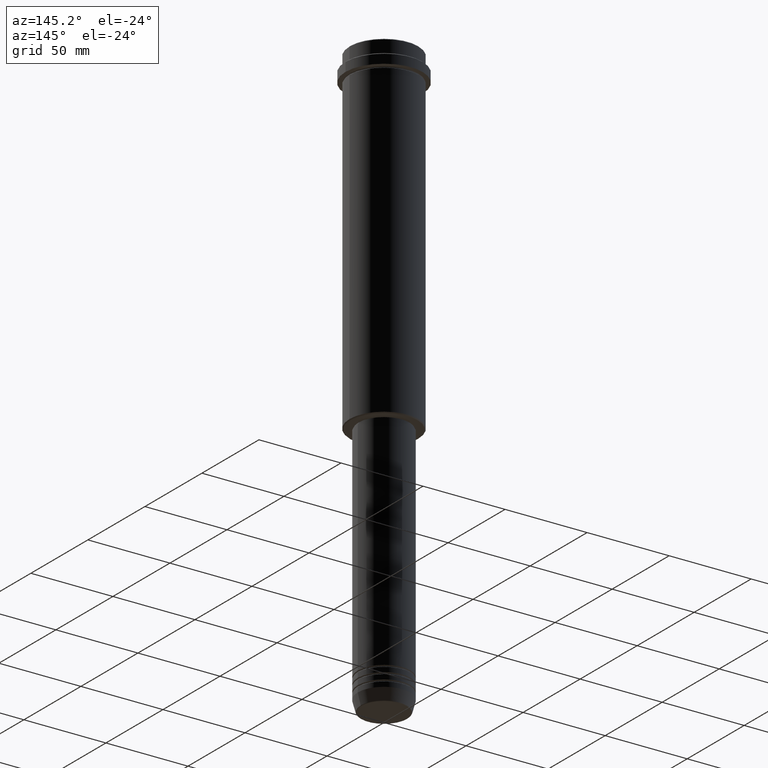
[diagram: clean part render]
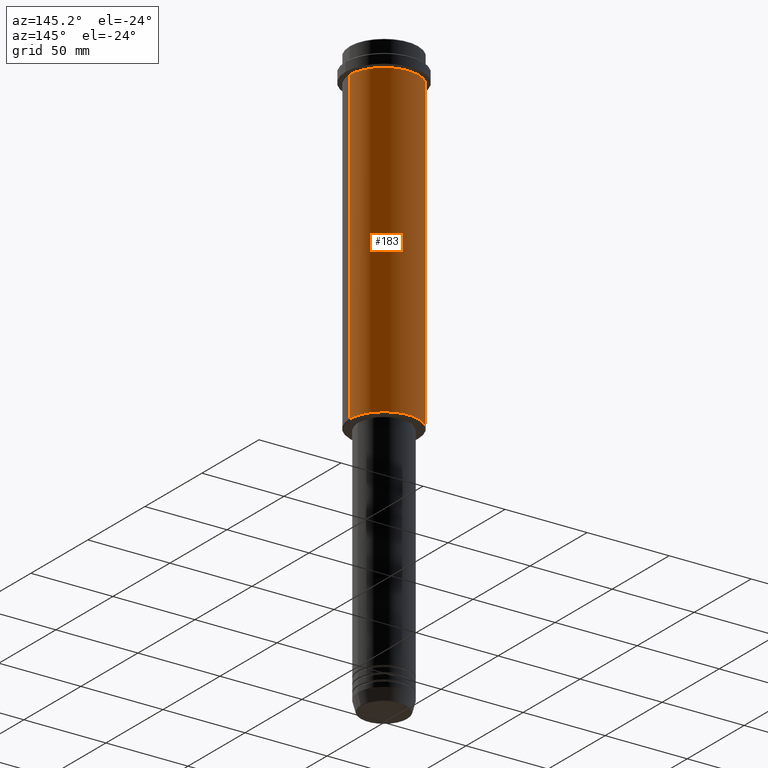
[diagram: same view with one face highlighted and labeled with its STEP entity id]
A machine part, auxiliary view. The second image highlights one B-rep face of the part: STEP entity #183.
In plain terms, the highlighted cylindrical surface (partial cylindrical patch) has radius 21 mm, axis along (-0, -0, 1).
Its self-contained STEP definition (entity closure, byte-faithful):
#32 = DIRECTION ( 'NONE',  ( -0.000000000000000000, -0.000000000000000000, 1.000000000000000000 ) ) ;
#41 = DIRECTION ( 'NONE',  ( 1.000000000000000000, 0.000000000000000000, 0.000000000000000000 ) ) ;
#114 = CARTESIAN_POINT ( 'NONE',  ( -20.99999999999999645, 2.571758278209441267E-15, -204.5000000000000853 ) ) ;
#123 = EDGE_CURVE ( 'NONE', #1327, #867, #726, .T. ) ;
#132 = CARTESIAN_POINT ( 'NONE',  ( 20.99999999999999645, 0.000000000000000000, -16.00000000000000355 ) ) ;
#160 = AXIS2_PLACEMENT_3D ( 'NONE', #940, #947, #1364 ) ;
#177 = ORIENTED_EDGE ( 'NONE', *, *, #123, .F. ) ;
#183 = ADVANCED_FACE ( 'NONE', ( #465 ), #1366, .T. ) ;
#263 = ORIENTED_EDGE ( 'NONE', *, *, #1116, .T. ) ;
#264 = CARTESIAN_POINT ( 'NONE',  ( 20.99999999999999645, 0.000000000000000000, 0.000000000000000000 ) ) ;
#343 = AXIS2_PLACEMENT_3D ( 'NONE', #593, #935, #41 ) ;
#420 = EDGE_CURVE ( 'NONE', #867, #1112, #663, .T. ) ;
#465 = FACE_OUTER_BOUND ( 'NONE', #946, .T. ) ;
#508 = EDGE_CURVE ( 'NONE', #802, #1112, #527, .T. ) ;
#527 = LINE ( 'NONE', #747, #664 ) ;
#533 = CIRCLE ( 'NONE', #861, 20.99999999999999645 ) ;
#592 = VECTOR ( 'NONE', #1160, 1000.000000000000000 ) ;
#593 = CARTESIAN_POINT ( 'NONE',  ( 0.000000000000000000, 0.000000000000000000, 0.000000000000000000 ) ) ;
#657 = CARTESIAN_POINT ( 'NONE',  ( 0.000000000000000000, 0.000000000000000000, -204.5000000000000853 ) ) ;
#663 = CIRCLE ( 'NONE', #160, 20.99999999999999645 ) ;
#664 = VECTOR ( 'NONE', #1166, 1000.000000000000000 ) ;
#726 = LINE ( 'NONE', #264, #592 ) ;
#747 = CARTESIAN_POINT ( 'NONE',  ( -20.99999999999999645, 2.571758278209441267E-15, 0.000000000000000000 ) ) ;
#769 = DIRECTION ( 'NONE',  ( -1.000000000000000000, 0.000000000000000000, 0.000000000000000000 ) ) ;
#802 = VERTEX_POINT ( 'NONE', #114 ) ;
#844 = ORIENTED_EDGE ( 'NONE', *, *, #420, .F. ) ;
#861 = AXIS2_PLACEMENT_3D ( 'NONE', #657, #32, #769 ) ;
#867 = VERTEX_POINT ( 'NONE', #132 ) ;
#908 = ORIENTED_EDGE ( 'NONE', *, *, #508, .T. ) ;
#935 = DIRECTION ( 'NONE',  ( -0.000000000000000000, -0.000000000000000000, 1.000000000000000000 ) ) ;
#940 = CARTESIAN_POINT ( 'NONE',  ( 0.000000000000000000, 0.000000000000000000, -16.00000000000000355 ) ) ;
#946 = EDGE_LOOP ( 'NONE', ( #263, #908, #844, #177 ) ) ;
#947 = DIRECTION ( 'NONE',  ( -0.000000000000000000, -0.000000000000000000, 1.000000000000000000 ) ) ;
#1021 = CARTESIAN_POINT ( 'NONE',  ( -20.99999999999999645, 2.571758278209441267E-15, -16.00000000000000355 ) ) ;
#1112 = VERTEX_POINT ( 'NONE', #1021 ) ;
#1116 = EDGE_CURVE ( 'NONE', #1327, #802, #533, .T. ) ;
#1160 = DIRECTION ( 'NONE',  ( -0.000000000000000000, -0.000000000000000000, 1.000000000000000000 ) ) ;
#1166 = DIRECTION ( 'NONE',  ( -0.000000000000000000, -0.000000000000000000, 1.000000000000000000 ) ) ;
#1327 = VERTEX_POINT ( 'NONE', #1407 ) ;
#1364 = DIRECTION ( 'NONE',  ( 1.000000000000000000, 0.000000000000000000, 0.000000000000000000 ) ) ;
#1366 = CYLINDRICAL_SURFACE ( 'NONE', #343, 20.99999999999999645 ) ;
#1407 = CARTESIAN_POINT ( 'NONE',  ( 20.99999999999999645, 0.000000000000000000, -204.5000000000000853 ) ) ;